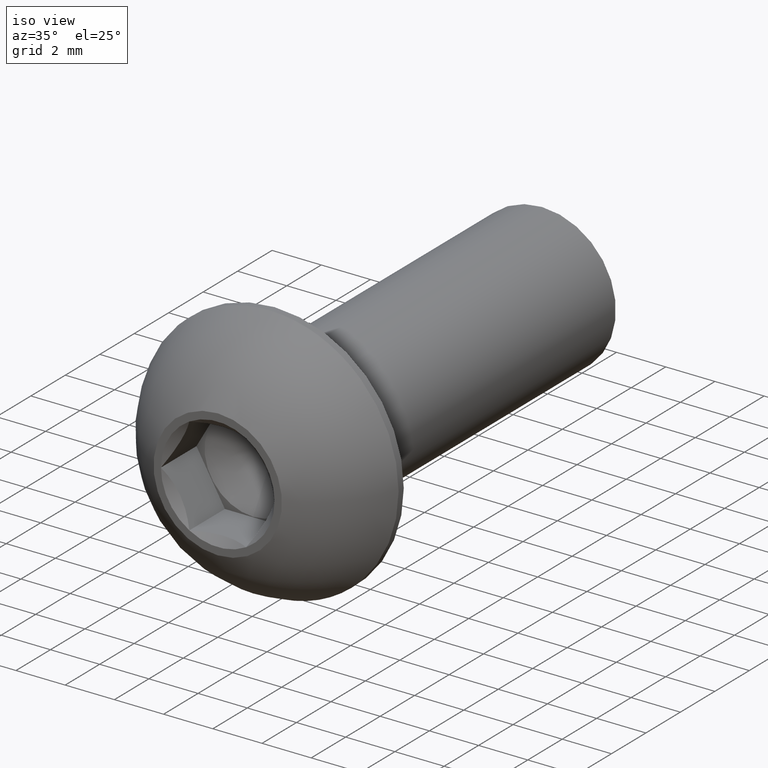
[diagram: clean part render]
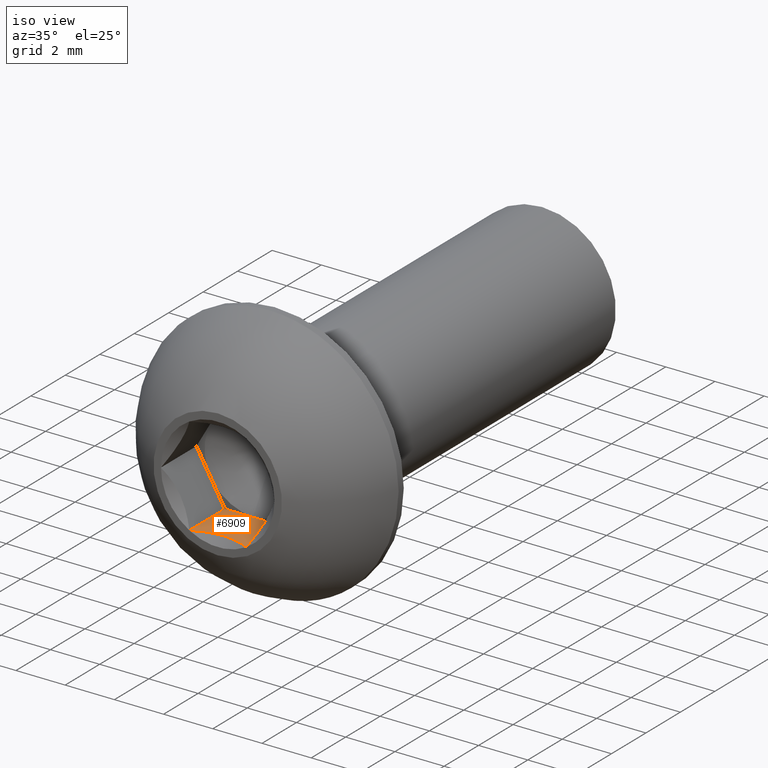
[diagram: same view with one face highlighted and labeled with its STEP entity id]
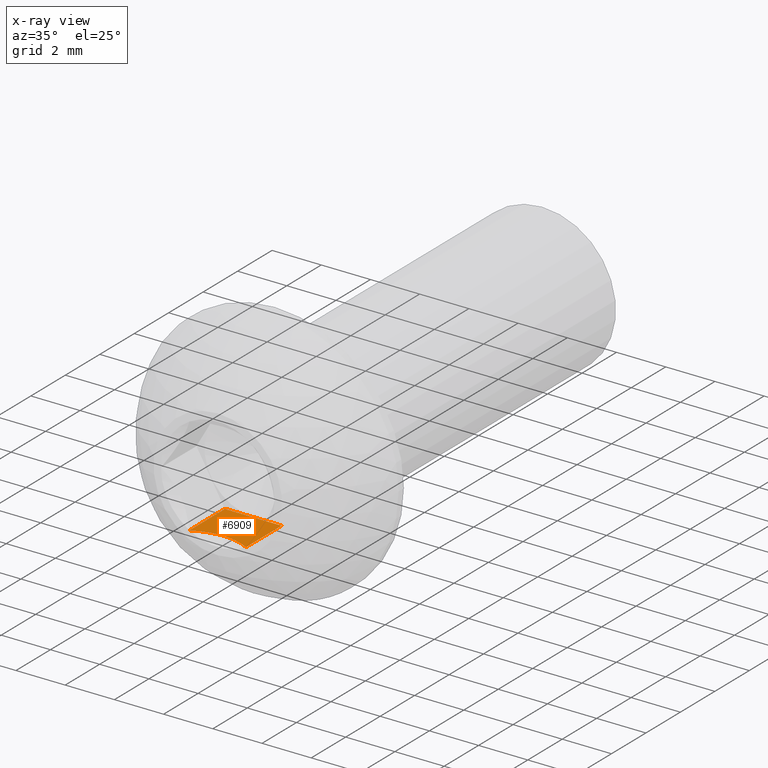
[diagram: x-ray of the same camera — body ghosted, the highlighted face saturated]
A machine part, iso view. The second image highlights one B-rep face of the part: STEP entity #6909.
The next image is the same camera in x-ray: the body ghosted, the highlighted face saturated — about 0% of this face is hidden behind the body in this view.
In plain terms, the highlighted planar face has unit normal (0, 0, -1).
Its self-contained STEP definition (entity closure, byte-faithful):
#263 = CARTESIAN_POINT ( 'NONE',  ( 1.154700538379232100, 2.062499999999999600, -2.000000000000000900 ) ) ;
#284 = ORIENTED_EDGE ( 'NONE', *, *, #9363, .F. ) ;
#834 = ORIENTED_EDGE ( 'NONE', *, *, #9770, .T. ) ;
#973 = CARTESIAN_POINT ( 'NONE',  ( 0.7881676911335731000, 0.1677190727106928600, -2.000000000000001300 ) ) ;
#1014 = ORIENTED_EDGE ( 'NONE', *, *, #13652, .F. ) ;
#2089 = CARTESIAN_POINT ( 'NONE',  ( 0.4011372671684942400, 0.2780211014149388500, -2.000000000000001300 ) ) ;
#2239 = LINE ( 'NONE', #13997, #12221 ) ;
#2661 = CARTESIAN_POINT ( 'NONE',  ( -1.154700538379267900, 0.0000000000000000000, -2.000000000000000900 ) ) ;
#2799 = CARTESIAN_POINT ( 'NONE',  ( -1.154700538379267900, 2.062499999999999600, -2.000000000000000900 ) ) ;
#2807 = VECTOR ( 'NONE', #3516, 1000.000000000000000 ) ;
#3206 = CARTESIAN_POINT ( 'NONE',  ( -0.4015228115318104600, 0.2778787755379924000, -2.000000000000000400 ) ) ;
#3326 = VECTOR ( 'NONE', #11144, 1000.000000000000000 ) ;
#3516 = DIRECTION ( 'NONE',  ( 0.0000000000000000000, -1.000000000000000000, 0.0000000000000000000 ) ) ;
#3554 = B_SPLINE_CURVE_WITH_KNOTS ( 'NONE', 3,
 ( #10545, #11940, #973, #2089, #14234, #7669, #3206, #14192, #8717, #6664 ),
 .UNSPECIFIED., .F., .F.,
 ( 4, 2, 2, 2, 4 ),
 ( 0.001229301740354063300, 0.001827455971444666200, 0.002425610202535268900, 0.003023764433625872200, 0.003621918664716474600 ),
 .UNSPECIFIED. ) ;
#4062 = AXIS2_PLACEMENT_3D ( 'NONE', #2799, #5024, #12712 ) ;
#4823 = FACE_OUTER_BOUND ( 'NONE', #9868, .T. ) ;
#5024 = DIRECTION ( 'NONE',  ( 0.0000000000000000000, 0.0000000000000000000, -1.000000000000000000 ) ) ;
#5401 = LINE ( 'NONE', #6591, #2807 ) ;
#5685 = CARTESIAN_POINT ( 'NONE',  ( 1.154700538379223500, 0.0000000000000000000, -2.000000000000016000 ) ) ;
#5905 = EDGE_CURVE ( 'NONE', #11184, #12759, #2239, .T. ) ;
#6145 = VERTEX_POINT ( 'NONE', #5685 ) ;
#6591 = CARTESIAN_POINT ( 'NONE',  ( -1.154700538379267900, 2.062499999999999600, -2.000000000000000900 ) ) ;
#6664 = CARTESIAN_POINT ( 'NONE',  ( -1.154700538379267900, 0.0000000000000000000, -2.000000000000000900 ) ) ;
#6909 = ADVANCED_FACE ( 'NONE', ( #4823 ), #8173, .F. ) ;
#7669 = CARTESIAN_POINT ( 'NONE',  ( -0.2024194915155727300, 0.3094573912014516000, -2.000000000000000400 ) ) ;
#7991 = CARTESIAN_POINT ( 'NONE',  ( -1.154700538379267900, 2.062499999999999600, -2.000000000000000900 ) ) ;
#8173 = PLANE ( 'NONE',  #4062 ) ;
#8717 = CARTESIAN_POINT ( 'NONE',  ( -0.9755627209765441700, 0.08956890870135708600, -2.000000000000000900 ) ) ;
#9124 = CARTESIAN_POINT ( 'NONE',  ( 1.154700538379232100, 2.062499999999999600, -2.000000000000000900 ) ) ;
#9363 = EDGE_CURVE ( 'NONE', #12759, #6145, #12810, .T. ) ;
#9770 = EDGE_CURVE ( 'NONE', #11184, #10253, #5401, .T. ) ;
#9868 = EDGE_LOOP ( 'NONE', ( #284, #12575, #834, #1014 ) ) ;
#10253 = VERTEX_POINT ( 'NONE', #2661 ) ;
#10545 = CARTESIAN_POINT ( 'NONE',  ( 1.154700538379223500, 0.0000000000000000000, -2.000000000000016000 ) ) ;
#11144 = DIRECTION ( 'NONE',  ( 0.0000000000000000000, -1.000000000000000000, 0.0000000000000000000 ) ) ;
#11184 = VERTEX_POINT ( 'NONE', #7991 ) ;
#11940 = CARTESIAN_POINT ( 'NONE',  ( 0.9760520563021568600, 0.08932424103854608200, -2.000000000000001300 ) ) ;
#12221 = VECTOR ( 'NONE', #13773, 1000.000000000000000 ) ;
#12575 = ORIENTED_EDGE ( 'NONE', *, *, #5905, .F. ) ;
#12712 = DIRECTION ( 'NONE',  ( -1.000000000000000000, 0.0000000000000000000, -0.0000000000000000000 ) ) ;
#12759 = VERTEX_POINT ( 'NONE', #9124 ) ;
#12810 = LINE ( 'NONE', #263, #3326 ) ;
#13652 = EDGE_CURVE ( 'NONE', #6145, #10253, #3554, .T. ) ;
#13773 = DIRECTION ( 'NONE',  ( 1.000000000000000000, 0.0000000000000000000, 0.0000000000000000000 ) ) ;
#13997 = CARTESIAN_POINT ( 'NONE',  ( -1.154700538379267900, 2.062499999999999600, -2.000000000000000900 ) ) ;
#14192 = CARTESIAN_POINT ( 'NONE',  ( -0.7870183626005198300, 0.1680790096125359400, -2.000000000000000900 ) ) ;
#14234 = CARTESIAN_POINT ( 'NONE',  ( 0.2035307927602217300, 0.3093446079417590500, -2.000000000000001300 ) ) ;